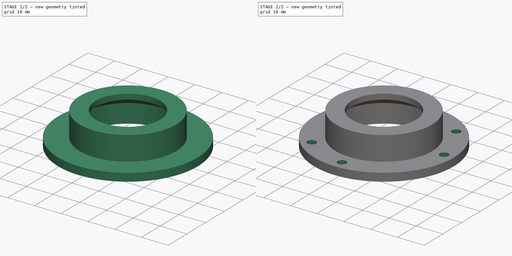
[diagram: build sequence overview — one tinted view per stage of 2, left to right]
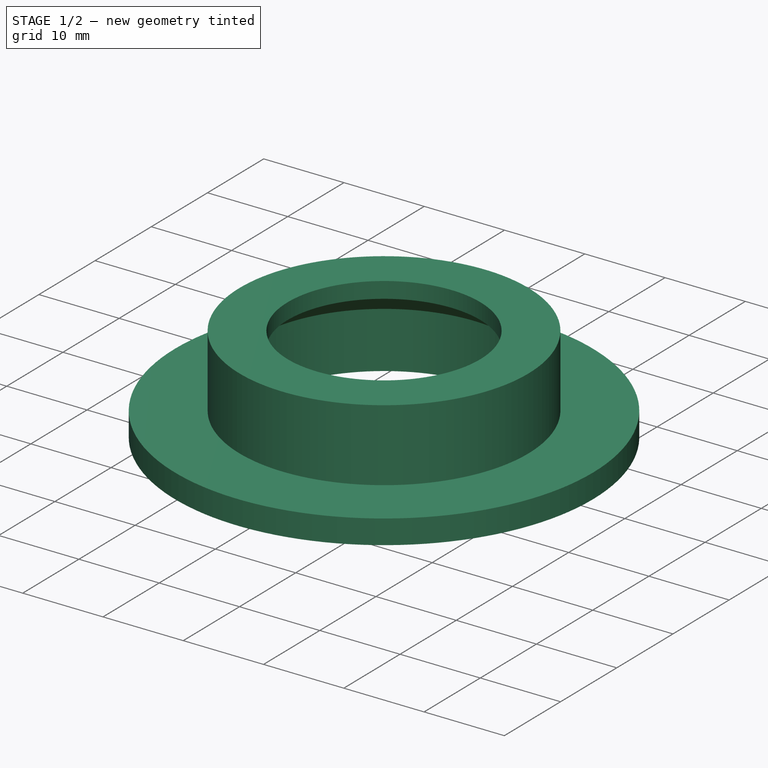
[diagram: stage 1 of 2 — iso view after this stage's code; geometry added in this stage tinted green]
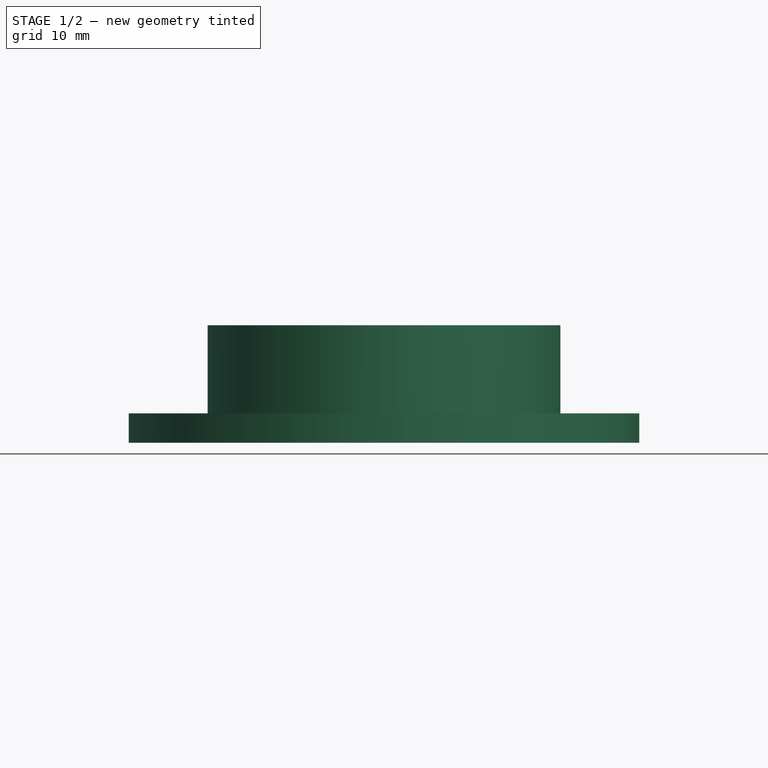
[diagram: stage 1 of 2 — front view after this stage's code; geometry added in this stage tinted green]
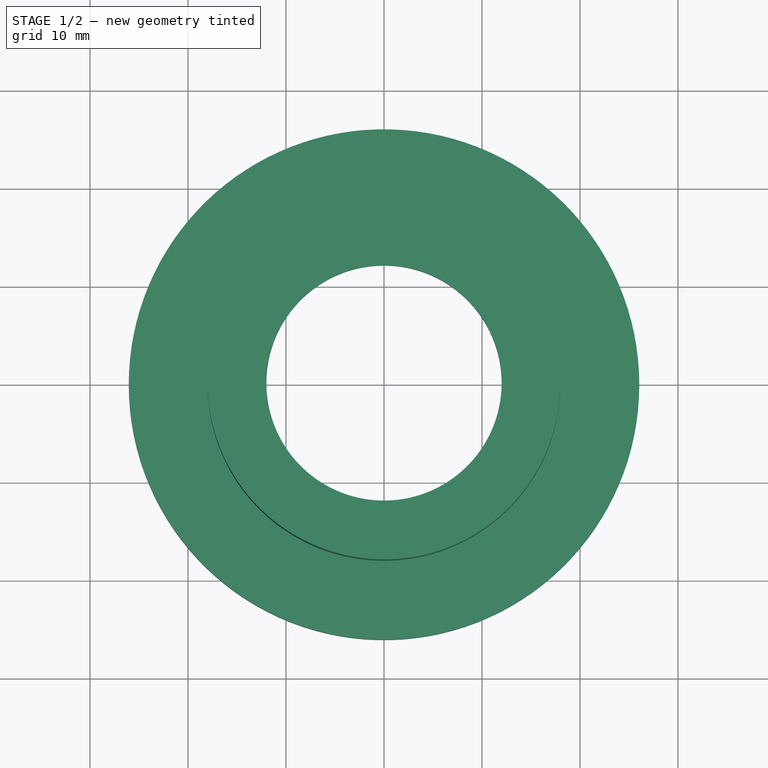
[diagram: stage 1 of 2 — top view after this stage's code; geometry added in this stage tinted green]
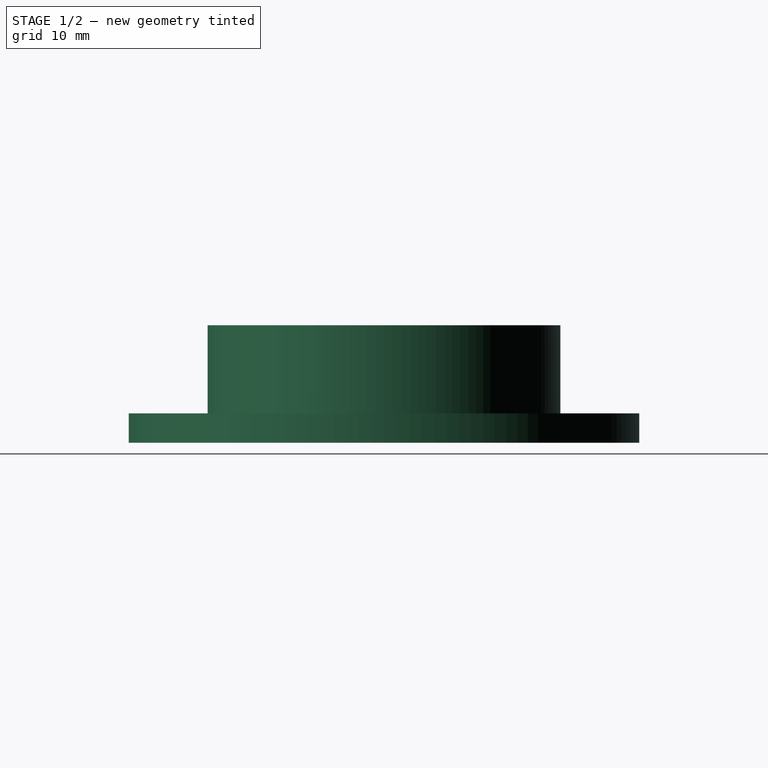
[diagram: stage 1 of 2 — right view after this stage's code; geometry added in this stage tinted green]
FCSTD DOCUMENT  (FreeCAD 0.20R29177 +426 (Git))
Label: button_case
License: All rights reserved
LicenseURL: http://en.wikipedia.org/wiki/All_rights_reserved
objects: Sketcher::SketchObject×2, Spreadsheet::Sheet×1, PartDesign::Revolution×1, PartDesign::Pocket×1, PartDesign::Body×1
note: 7 computed .brp shape members not serialized (recipe doc carries the construction recipe); baked Part::Feature solids carry a one-line shape summary decoded from their .brp
EXTERNAL_REF file=button_base_holder.FCStd obj=Sketch006
EXTERNAL_REF file=base_modular_holder.FCStd obj=Spreadsheet003

FEATURE [Sketcher::SketchObject] Sketch
  FullyConstrained = true
  MapMode = 5
  Placement = pos=(0,0,0) rot=(1,0,0;1.5708rad)
  Support = -> [XZ_Plane]
  expr: Constraints[10] = <<button_base_holder>>#<<Sketch006>>.Constraints.dia / 2
  expr: Constraints[11] = <<button_base_holder>>#<<Sketch006>>.Constraints.mid_dia / 2
  expr: Constraints[15] = <<button_base_holder>>#<<Sketch006>>.Constraints.inner_rad
  expr: Constraints[16] = <<button_data>>.base_thick
  expr: Constraints[25] = <<button_data>>.button_thick - <<button_data>>.button_stick_out
  expr: Constraints[27] = <<button_data>>.button_big_thick
  expr: Constraints[28] = <<button_data>>.button_thick_trans
  sketch-geometry (10):
    g0: LineSegment StartX=-16 StartY=7 StartZ=0 EndX=-12 EndY=10 EndZ=0
    g1: LineSegment StartX=-12 StartY=10 StartZ=0 EndX=-12 EndY=12 EndZ=0
    g2: LineSegment StartX=-12 StartY=12 StartZ=0 EndX=-18 EndY=12 EndZ=0
    g3: LineSegment StartX=-26.05 StartY=0 StartZ=0 EndX=-16 EndY=0 EndZ=0
    g4: LineSegment StartX=-26.05 StartY=0 StartZ=0 EndX=-26.05 EndY=3 EndZ=0
    g5: LineSegment StartX=-26.05 StartY=3 StartZ=0 EndX=-18 EndY=3 EndZ=0
    g6: LineSegment StartX=-18 StartY=3 StartZ=0 EndX=-18 EndY=12 EndZ=0
    g7: LineSegment StartX=-16 StartY=0 StartZ=0 EndX=-16 EndY=7 EndZ=0
    g8: LineSegment StartX=-12 StartY=10 StartZ=0 EndX=-12 EndY=7 EndZ=0
    g9: LineSegment StartX=-16 StartY=7 StartZ=0 EndX=-12 EndY=7 EndZ=0
  constraints (29):
    c: PointOnObject(g3,g-1)
    c: Coincident(g0,g1)
    c: Vertical(g1)
    c: Coincident(g1,g2)
    c: Horizontal(g2)
    c: PointOnObject(g3,g-1)
    c: Coincident(g4,g3)
    c: Vertical(g4)
    c: Coincident(g4,g5)
    c: Horizontal(g5)
    c: DistanceX(g3,g-1) = 26.05
    c: DistanceX(g3,g-1) = 16
    c: Coincident(g6,g5)
    c: Coincident(g6,g2)
    c: Vertical(g6)
    c: DistanceX(g0,g-1) = 12
    c: DistanceY(g4,g4) = 3
    c: Coincident(g7,g3)
    c: Vertical(g7)
    c: Coincident(g0,g7)
    c: Coincident(g8,g0)
    c: Vertical(g8)
    c: Coincident(g9,g0)
    c: Coincident(g9,g8)
    c: Horizontal(g9)
    c: DistanceY(g1,g1) = 2
    c: DistanceX(g5,g7) = 2
    c: DistanceY(g7,g7) = 7
    c: DistanceY(g8,g8) = 3
FEATURE [Spreadsheet::Sheet] Spreadsheet  label="button_data"
  cells = A1=Name; B1=Value; A2=base_thick; B2(base_thick)==3mm; A3=button_thick; B3(button_thick)==5mm; A4=button_big_thick; B4(button_big_thick)==7mm; A5=button_stick_out; B5(button_stick_out)==3mm; A6=button_start_len; B6(button_start_len)==2mm; A7=button_thick_trans; B7(button_thick_trans)==3mm
FEATURE [PartDesign::Revolution] Revolution
  Angle = 360
  Axis = (0,-2e-16,1)
  Base = (0,0,0)
  Placement = pos=(0,0,0) rot=(1,0,0;1.5708rad)
  Profile = -> Sketch
  ReferenceAxis = -> Sketch [V_Axis]
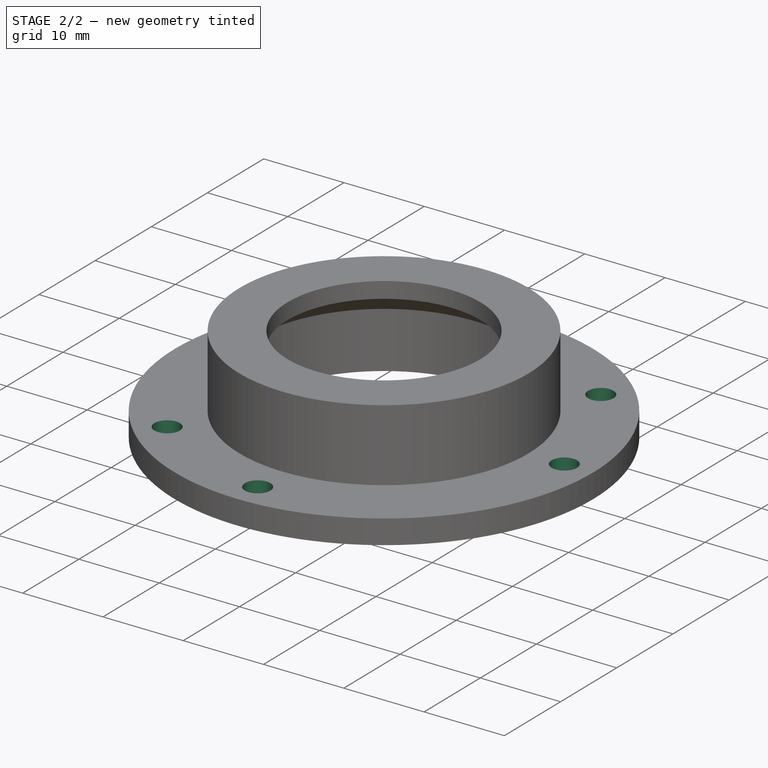
[diagram: stage 2 of 2 — iso view after this stage's code; geometry added in this stage tinted green]
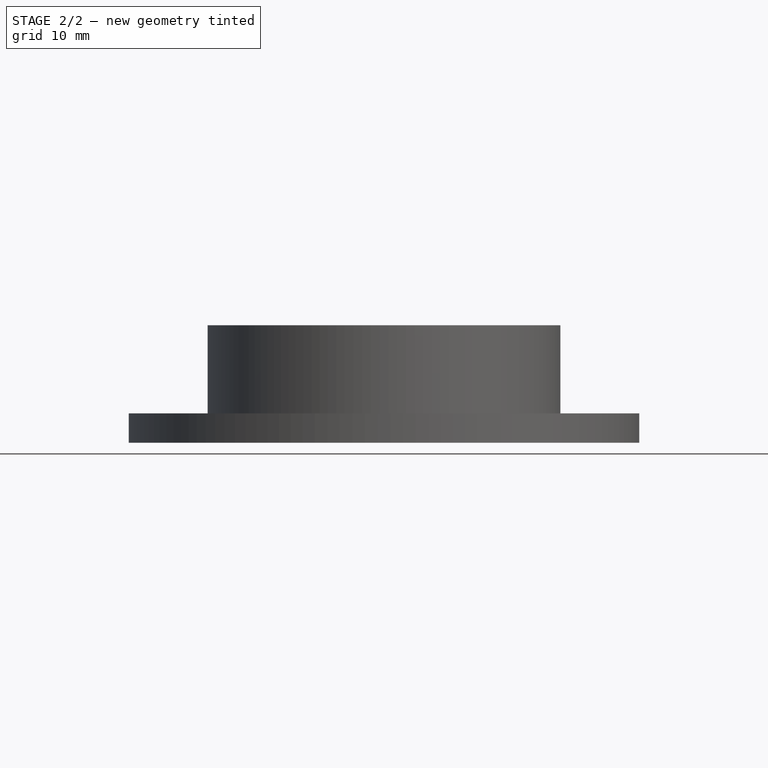
[diagram: stage 2 of 2 — front view after this stage's code; geometry added in this stage tinted green]
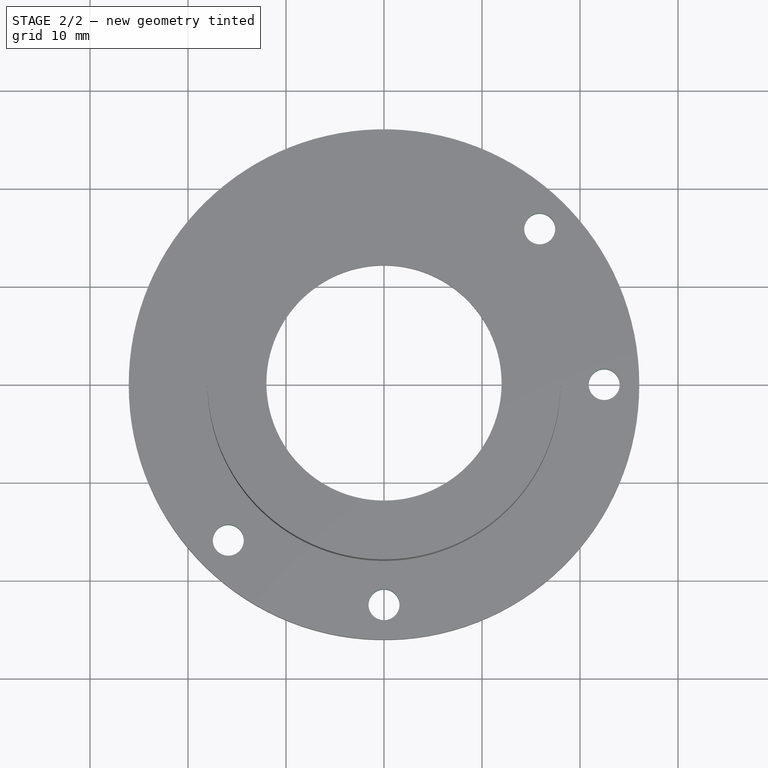
[diagram: stage 2 of 2 — top view after this stage's code; geometry added in this stage tinted green]
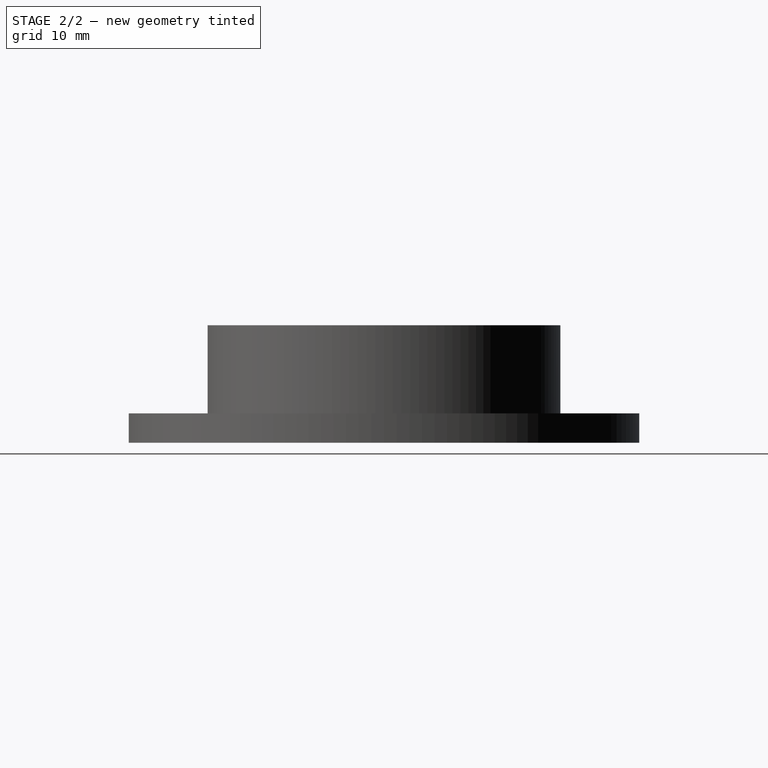
[diagram: stage 2 of 2 — right view after this stage's code; geometry added in this stage tinted green]
FEATURE [Sketcher::SketchObject] Sketch001
  FullyConstrained = true
  MapMode = 5
  Support = -> [XY_Plane]
  expr: Constraints[23] = <<base_modular_holder>>#<<button_connect_data>>.screw_dia
  expr: Constraints[27] = <<button_data>>.button_start_len
  expr: Constraints[2] = <<button_base_holder>>#<<Sketch006>>.Constraints.dia
  expr: Constraints[3] = <<button_base_holder>>#<<Sketch006>>.Constraints.mid_dia
  sketch-geometry (19):
    g0: Circle CenterX=0 CenterY=0 CenterZ=0 NormalX=0 NormalY=0 NormalZ=1 AngleXU=0 Radius=16
    g1: Circle CenterX=0 CenterY=0 CenterZ=0 NormalX=0 NormalY=0 NormalZ=1 AngleXU=0 Radius=26.05
    g2: LineSegment StartX=0 StartY=16 StartZ=0 EndX=0 EndY=26.05 EndZ=0
    g3: LineSegment StartX=16 StartY=0 StartZ=0 EndX=22.47 EndY=0 EndZ=0
    g4: LineSegment StartX=22.47 StartY=0 StartZ=0 EndX=26.05 EndY=0 EndZ=0
    g5: LineSegment StartX=0 StartY=-16 StartZ=0 EndX=0 EndY=-22.47 EndZ=0
    g6: LineSegment StartX=0 StartY=-26.05 StartZ=0 EndX=0 EndY=-22.47 EndZ=0
    g7: Circle CenterX=22.47 CenterY=0 CenterZ=0 NormalX=0 NormalY=0 NormalZ=1 AngleXU=0 Radius=1.58
    g8: Circle CenterX=0 CenterY=-22.47 CenterZ=0 NormalX=0 NormalY=0 NormalZ=1 AngleXU=0 Radius=1.58
    g9: GeomPoint X=24.05 Y=0 Z=0
    g10: LineSegment StartX=0 StartY=0 StartZ=0 EndX=-11.3137 EndY=-11.3137 EndZ=0
    g11: LineSegment StartX=-11.3137 StartY=-11.3137 StartZ=0 EndX=-15.8887 EndY=-15.8887 EndZ=0
    g12: LineSegment StartX=-15.8887 StartY=-15.8887 StartZ=0 EndX=-18.4201 EndY=-18.4201 EndZ=0
    g13: LineSegment StartX=0 StartY=0 StartZ=0 EndX=11.3137 EndY=11.3137 EndZ=0
    g14: LineSegment StartX=11.3137 StartY=11.3137 StartZ=0 EndX=15.8887 EndY=15.8887 EndZ=0
    g15: LineSegment StartX=15.8887 StartY=15.8887 StartZ=0 EndX=18.4201 EndY=18.4201 EndZ=0
    g16: LineSegment StartX=0 StartY=0 StartZ=0 EndX=-26.05 EndY=0 EndZ=0
    g17: Circle CenterX=-15.8887 CenterY=-15.8887 CenterZ=0 NormalX=0 NormalY=0 NormalZ=1 AngleXU=0 Radius=1.58
    g18: Circle CenterX=15.8887 CenterY=15.8887 CenterZ=0 NormalX=0 NormalY=0 NormalZ=1 AngleXU=0 Radius=1.58
  constraints (53):
    c: Coincident(g0,g-1)
    c: Coincident(g1,g0)
    c: Diameter(g1) = 52.1
    c: Diameter(g0) = 32
    c: PointOnObject(g2,g0)
    c: PointOnObject(g2,g-2)
    c: Vertical(g2)
    c: PointOnObject(g3,g0)
    c: PointOnObject(g3,g-1)
    c: Horizontal(g3)
    c: Coincident(g4,g3)
    c: PointOnObject(g4,g1)
    c: Horizontal(g4)
    c: PointOnObject(g5,g0)
    c: PointOnObject(g5,g-2)
    c: Vertical(g5)
    c: PointOnObject(g6,g1)
    c: Coincident(g6,g5)
    c: Vertical(g6)
    c: Equal(g4,g6)
    c: Coincident(g7,g3)
    c: Coincident(g8,g5)
    c: Equal(g7,g8)
    c: Diameter(g7) = 3.16
    c: PointOnObject(g2,g1)
    c: PointOnObject(g9,g7)
    c: PointOnObject(g9,g4)
    c: Distance(g4,g9) = 2
    c: Coincident(g10,g0)
    c: PointOnObject(g10,g0)
    c: Coincident(g11,g10)
    c: Coincident(g12,g11)
    c: PointOnObject(g12,g1)
    c: Coincident(g13,g0)
    c: PointOnObject(g13,g0)
    c: Coincident(g14,g13)
    c: Coincident(g15,g14)
    c: PointOnObject(g15,g1)
    c: Parallel(g15,g14)
    c: Parallel(g14,g13)
    c: Parallel(g10,g11)
    c: Parallel(g11,g12)
    c: Coincident(g16,g0)
    c: PointOnObject(g16,g1)
    c: Horizontal(g16)
    c: Angle(g16,g10) = 0.785398
    c: Angle(g-1,g13) = 0.785398
    c: Equal(g4,g15)
    c: Equal(g15,g12)
    c: Coincident(g17,g11)
    c: Coincident(g18,g14)
    c: Equal(g7,g18)
    c: Equal(g18,g17)
FEATURE [PartDesign::Pocket] Pocket
  BaseFeature = -> Revolution
  Direction = (0,0,-1)
  Length = 5
  Length2 = 5
  Midplane = true
  Placement = pos=(0,0,0) rot=(1,0,0;1.5708rad)
  Profile = -> Sketch001
  ReferenceAxis = -> Sketch001 [N_Axis]
  Type = 1
FEATURE [PartDesign::Body] Body
  Group = -> [Sketch,Revolution,Sketch001,Pocket]
  Origin = -> Origin
  Tip = -> Pocket
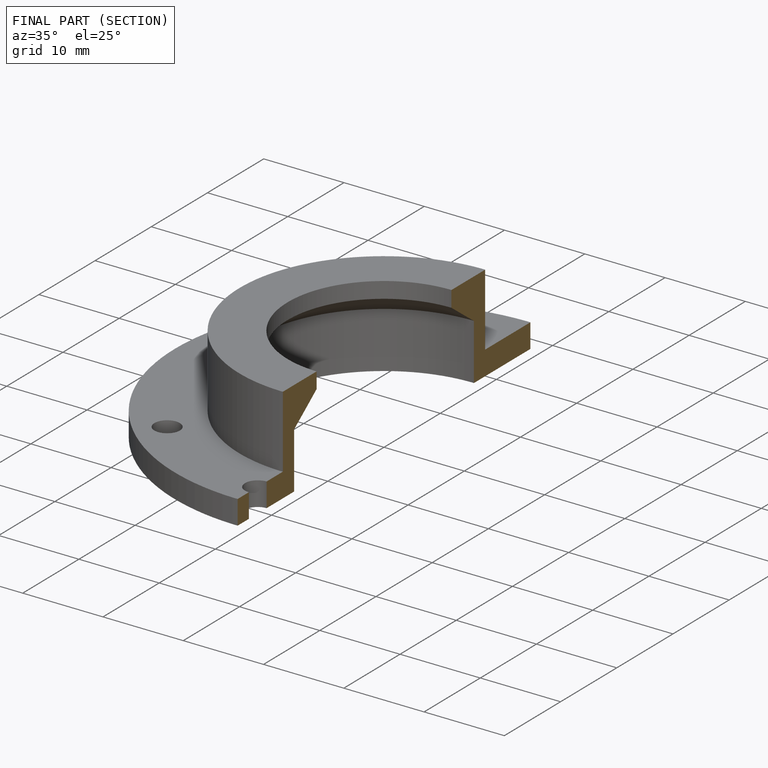
[diagram: finished part — half-section view (interior)]
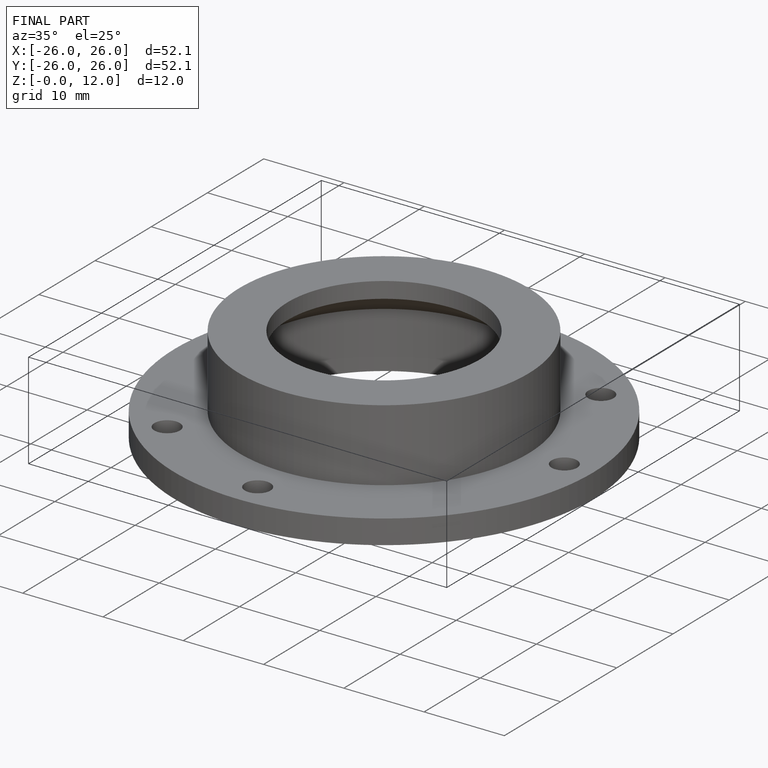
[diagram: finished part — iso view with bounding-box wireframe]
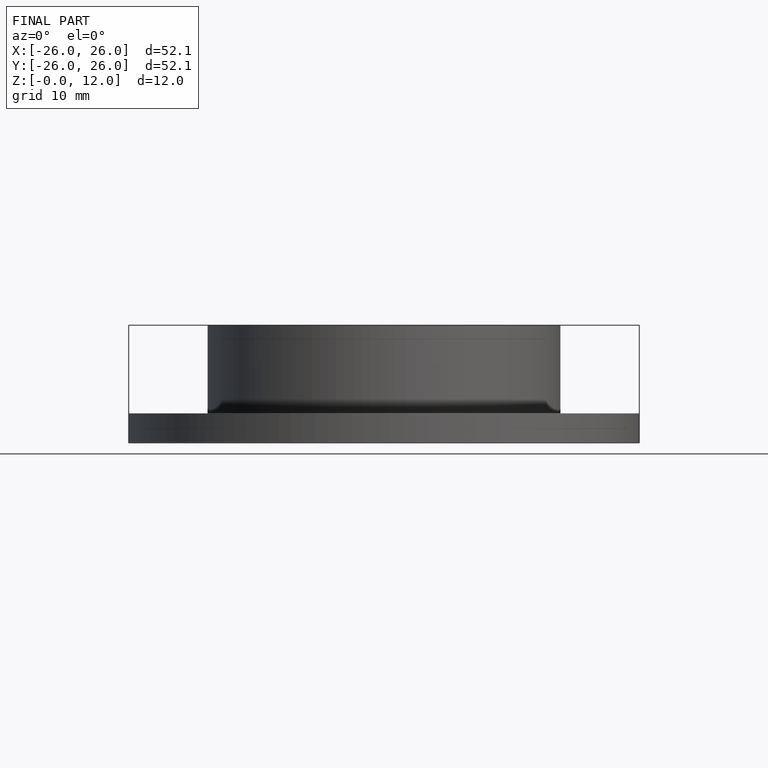
[diagram: finished part — front view with bounding-box wireframe]
